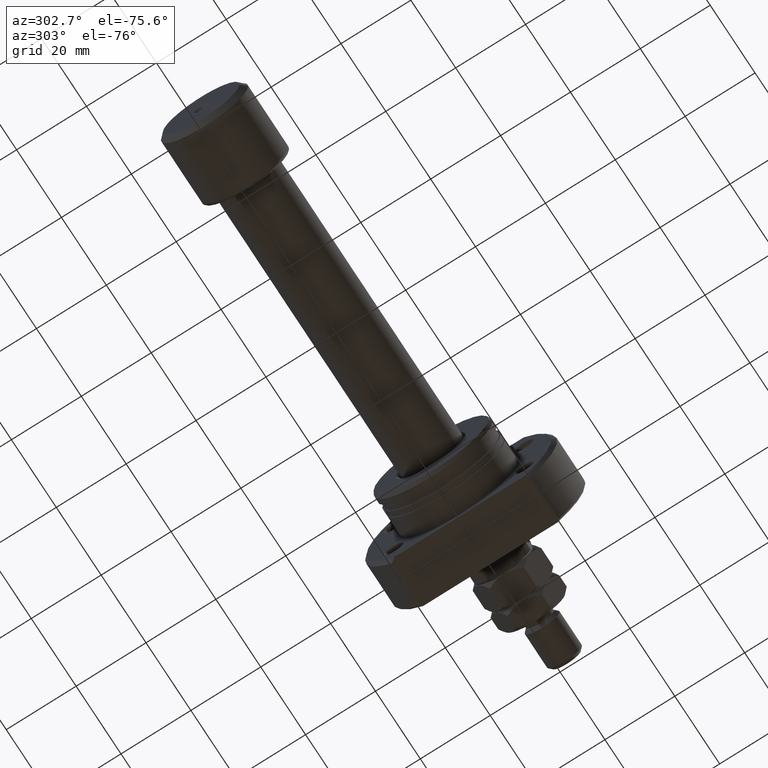
[diagram: clean part render]
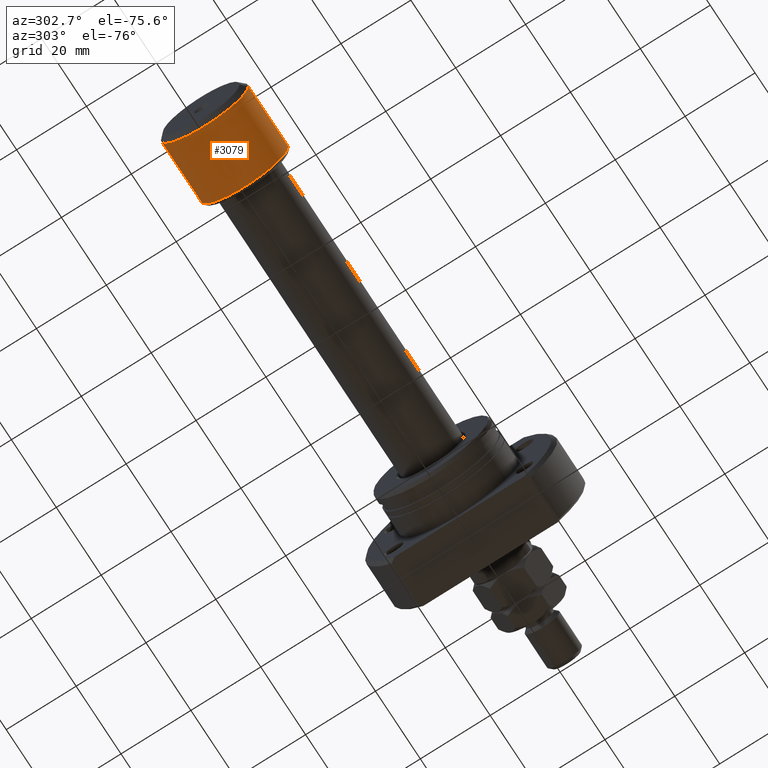
[diagram: same view with one face highlighted and labeled with its STEP entity id]
A machine part, auxiliary view. The second image highlights one B-rep face of the part: STEP entity #3079.
In plain terms, the highlighted cylindrical surface (partial cylindrical patch) has radius 12.5 mm, axis along (-1, -0, -0).
Its self-contained STEP definition (entity closure, byte-faithful):
#71 = EDGE_LOOP ( 'NONE', ( #2964, #2212, #2234, #2803 ) ) ;
#76 = VERTEX_POINT ( 'NONE', #3361 ) ;
#114 = DIRECTION ( 'NONE',  ( -1.000000000000000000, -1.069542322069065801E-17, -0.000000000000000000 ) ) ;
#170 = DIRECTION ( 'NONE',  ( 0.000000000000000000, -1.000000000000000000, 0.000000000000000000 ) ) ;
#262 = EDGE_CURVE ( 'NONE', #3569, #2344, #1107, .T. ) ;
#280 = CYLINDRICAL_SURFACE ( 'NONE', #4373, 12.50000000000000000 ) ;
#862 = CARTESIAN_POINT ( 'NONE',  ( 19.39999999999999503, -12.50000000000000000, 0.000000000000000000 ) ) ;
#901 = VECTOR ( 'NONE', #114, 1000.000000000000000 ) ;
#1107 = CIRCLE ( 'NONE', #4262, 12.50000000000000000 ) ;
#1271 = DIRECTION ( 'NONE',  ( -1.000000000000000000, -1.069542322069065801E-17, -0.000000000000000000 ) ) ;
#1374 = CARTESIAN_POINT ( 'NONE',  ( 19.39999999999999503, 12.50000000000000000, 1.530808498934191521E-15 ) ) ;
#1480 = DIRECTION ( 'NONE',  ( 1.069542322069065955E-17, -1.000000000000000000, 0.000000000000000000 ) ) ;
#1612 = LINE ( 'NONE', #3816, #901 ) ;
#1669 = CARTESIAN_POINT ( 'NONE',  ( 1.336927902586332490E-16, -12.50000000000000000, 0.000000000000000000 ) ) ;
#1763 = CIRCLE ( 'NONE', #4452, 12.50000000000000000 ) ;
#2153 = VECTOR ( 'NONE', #3920, 1000.000000000000000 ) ;
#2212 = ORIENTED_EDGE ( 'NONE', *, *, #262, .T. ) ;
#2234 = ORIENTED_EDGE ( 'NONE', *, *, #4636, .T. ) ;
#2344 = VERTEX_POINT ( 'NONE', #862 ) ;
#2587 = DIRECTION ( 'NONE',  ( -1.000000000000000000, -1.069542322069065801E-17, -0.000000000000000000 ) ) ;
#2776 = CARTESIAN_POINT ( 'NONE',  ( 19.39999999999999503, 2.074912104813986935E-16, 0.000000000000000000 ) ) ;
#2803 = ORIENTED_EDGE ( 'NONE', *, *, #4460, .F. ) ;
#2964 = ORIENTED_EDGE ( 'NONE', *, *, #4211, .F. ) ;
#3079 = ADVANCED_FACE ( 'NONE', ( #4364 ), #280, .T. ) ;
#3179 = LINE ( 'NONE', #1669, #2153 ) ;
#3357 = DIRECTION ( 'NONE',  ( -1.000000000000000000, -1.069542322069065801E-17, -0.000000000000000000 ) ) ;
#3361 = CARTESIAN_POINT ( 'NONE',  ( 1.500000000000001776, -12.50000000000000000, 1.530808498934191521E-15 ) ) ;
#3569 = VERTEX_POINT ( 'NONE', #1374 ) ;
#3669 = CARTESIAN_POINT ( 'NONE',  ( 0.000000000000000000, 0.000000000000000000, 0.000000000000000000 ) ) ;
#3816 = CARTESIAN_POINT ( 'NONE',  ( -1.336927902586332490E-16, 12.50000000000000000, 1.530808498934191521E-15 ) ) ;
#3920 = DIRECTION ( 'NONE',  ( -1.000000000000000000, -1.069542322069065801E-17, -0.000000000000000000 ) ) ;
#4049 = DIRECTION ( 'NONE',  ( 1.734723475976807094E-17, -1.000000000000000000, 0.000000000000000000 ) ) ;
#4198 = CARTESIAN_POINT ( 'NONE',  ( 1.500000000000001332, 12.50000000000000000, 0.000000000000000000 ) ) ;
#4211 = EDGE_CURVE ( 'NONE', #3569, #4298, #1612, .T. ) ;
#4262 = AXIS2_PLACEMENT_3D ( 'NONE', #2776, #1271, #170 ) ;
#4298 = VERTEX_POINT ( 'NONE', #4198 ) ;
#4364 = FACE_OUTER_BOUND ( 'NONE', #71, .T. ) ;
#4373 = AXIS2_PLACEMENT_3D ( 'NONE', #3669, #2587, #1480 ) ;
#4418 = CARTESIAN_POINT ( 'NONE',  ( 1.500000000000001554, 1.604313483103600319E-17, 0.000000000000000000 ) ) ;
#4452 = AXIS2_PLACEMENT_3D ( 'NONE', #4418, #3357, #4049 ) ;
#4460 = EDGE_CURVE ( 'NONE', #4298, #76, #1763, .T. ) ;
#4636 = EDGE_CURVE ( 'NONE', #2344, #76, #3179, .T. ) ;